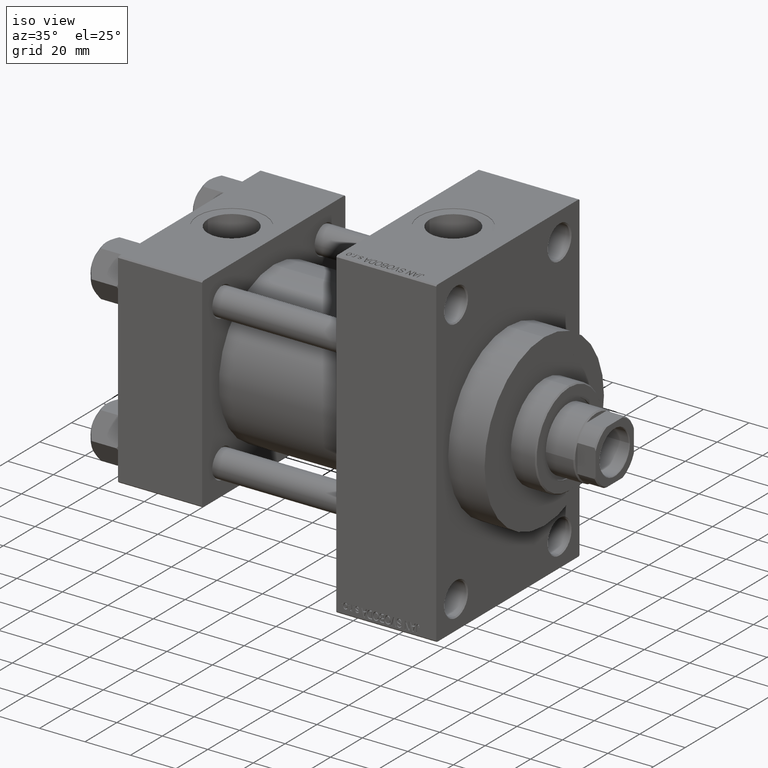
[diagram: clean part render]
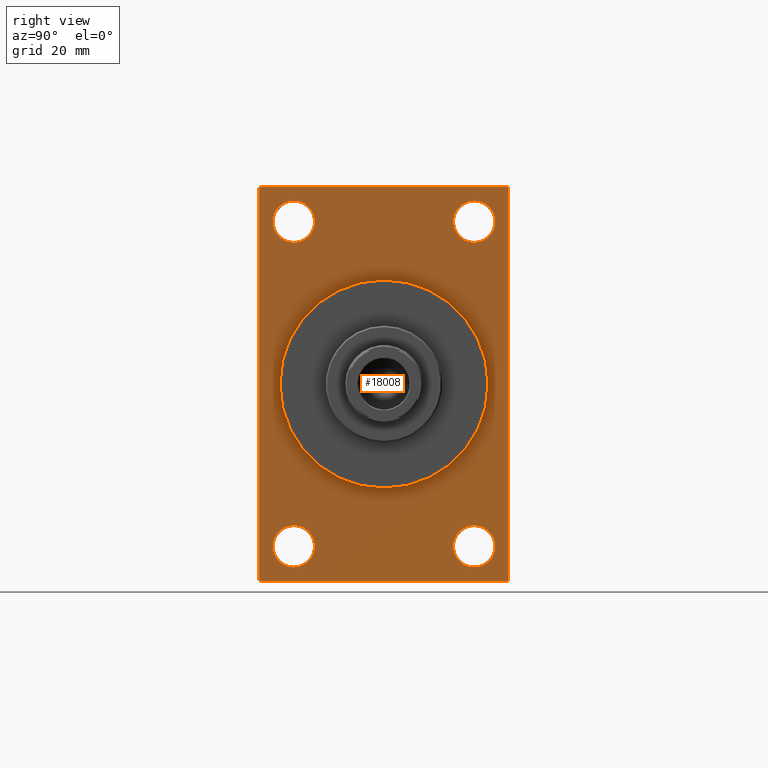
[diagram: tour spotlight — one face highlighted and labeled with its STEP entity id]
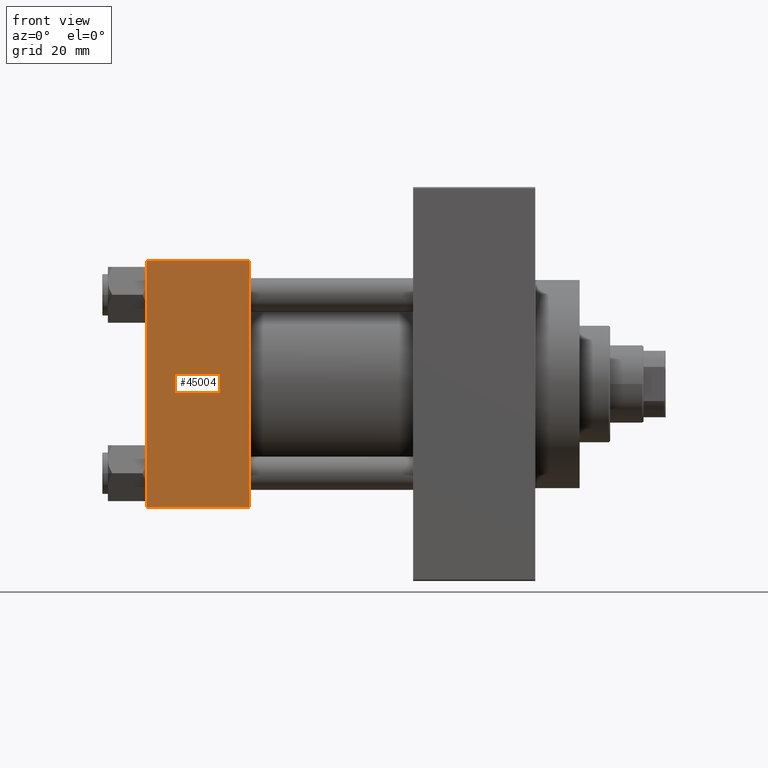
[diagram: tour spotlight — one face highlighted and labeled with its STEP entity id]
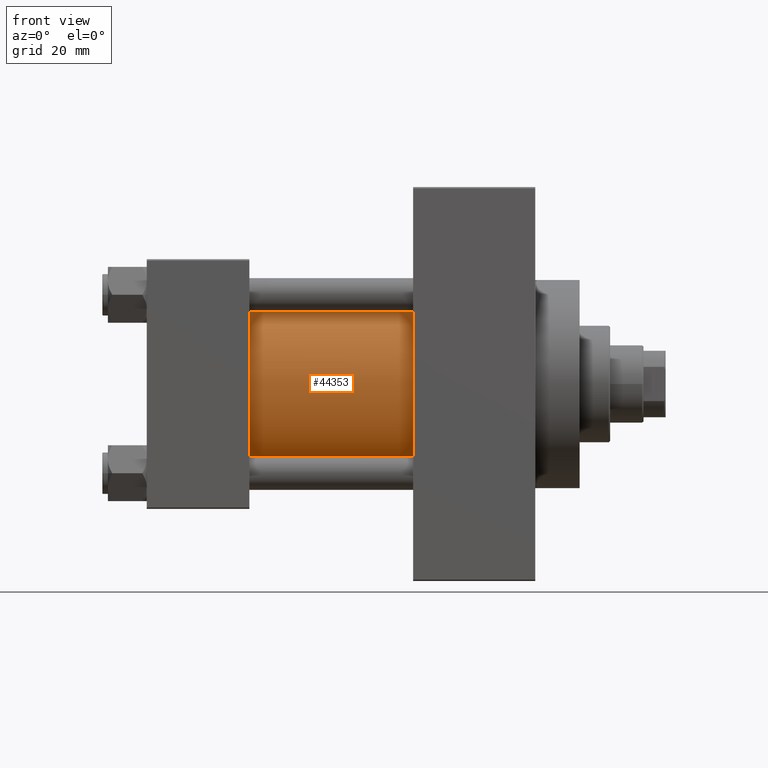
[diagram: tour spotlight — one face highlighted and labeled with its STEP entity id]
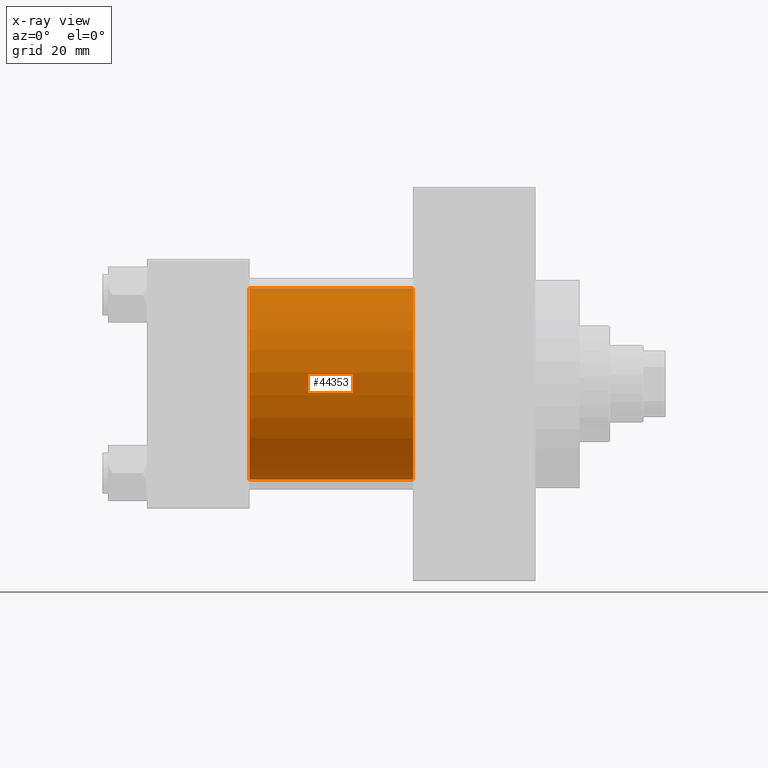
[diagram: x-ray of the same camera — body ghosted, this tour face saturated]
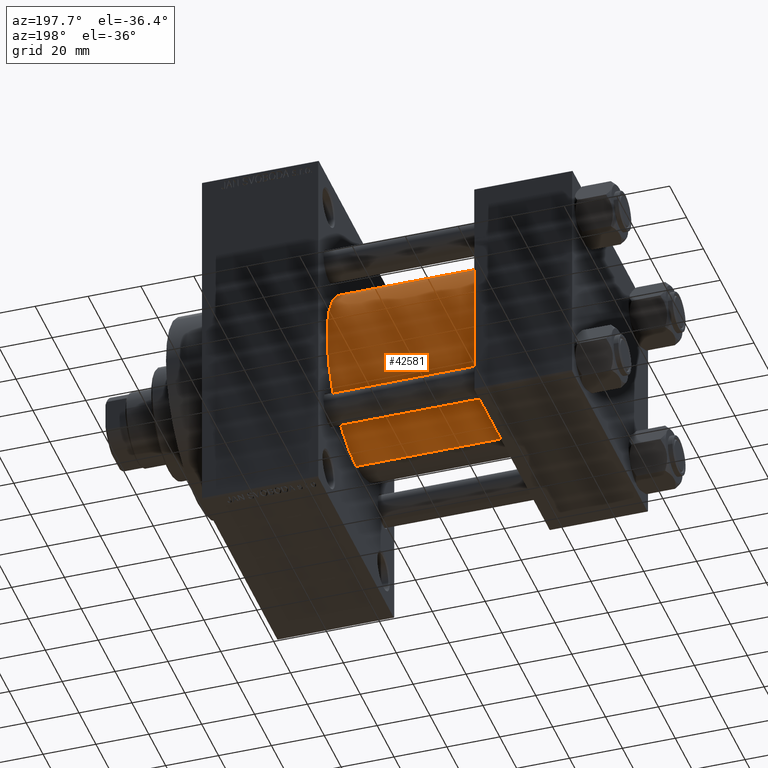
[diagram: tour spotlight — one face highlighted and labeled with its STEP entity id]
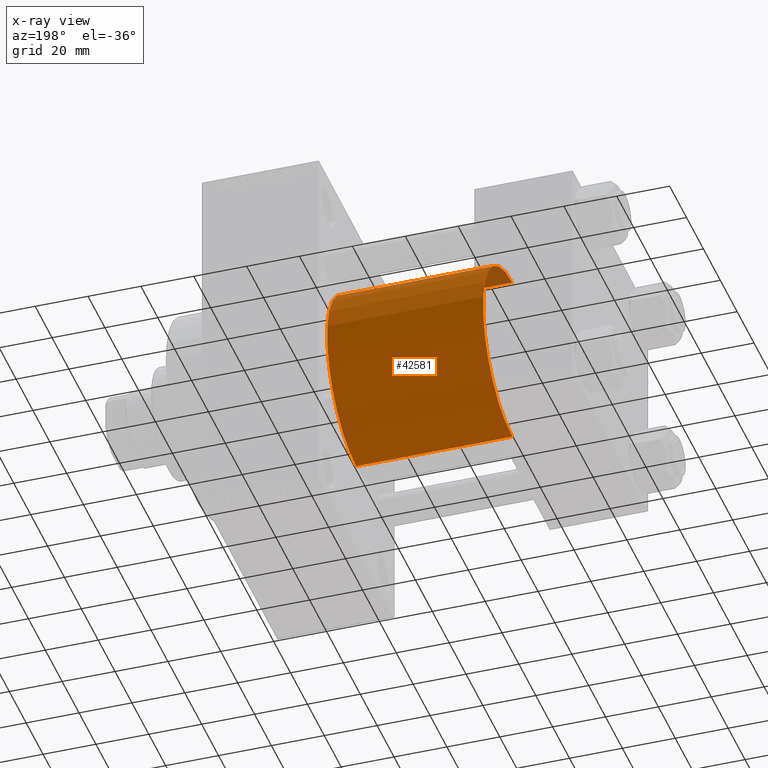
[diagram: x-ray of the same camera — body ghosted, this tour face saturated]
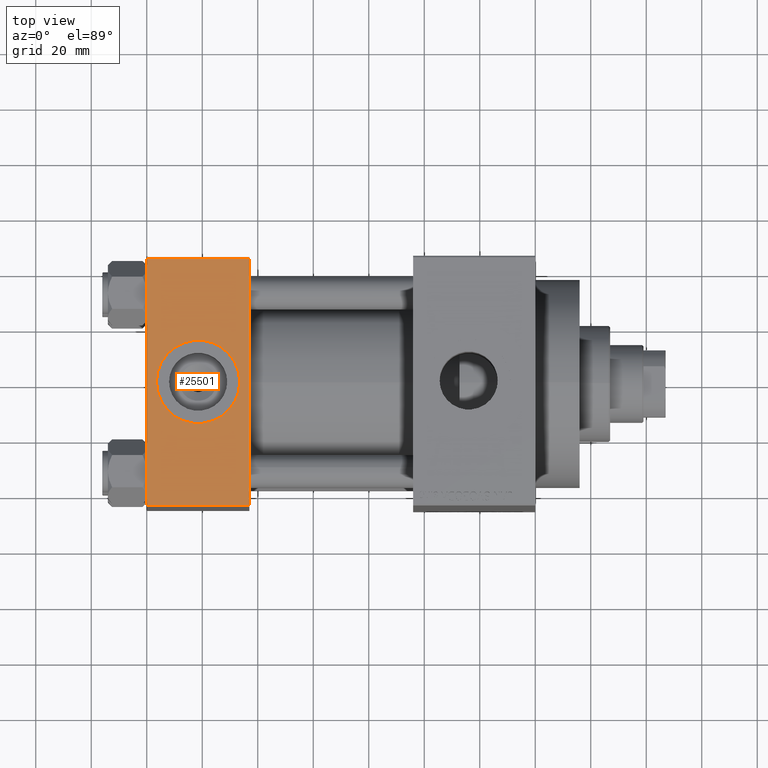
[diagram: tour spotlight — one face highlighted and labeled with its STEP entity id]
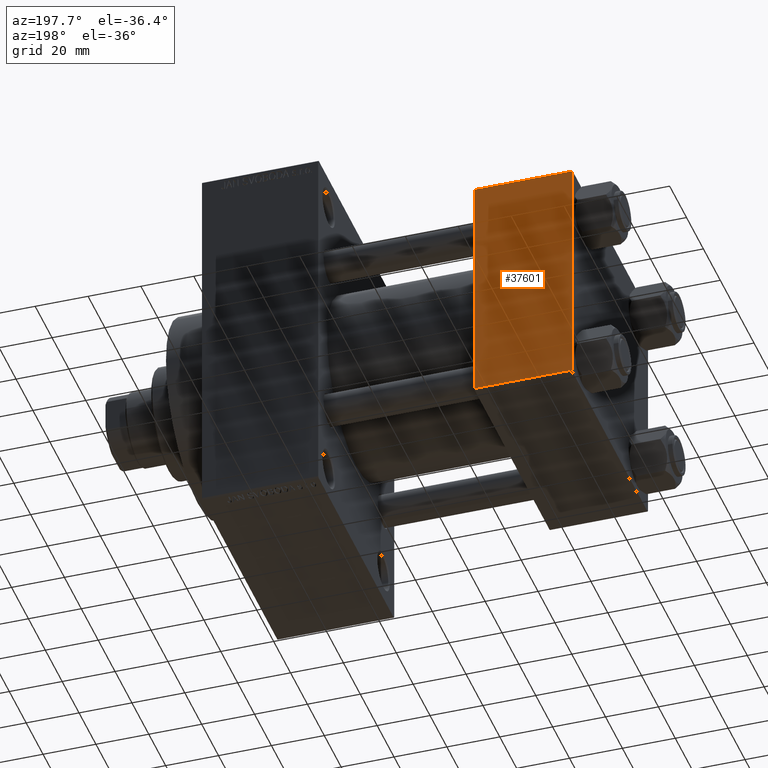
[diagram: tour spotlight — one face highlighted and labeled with its STEP entity id]
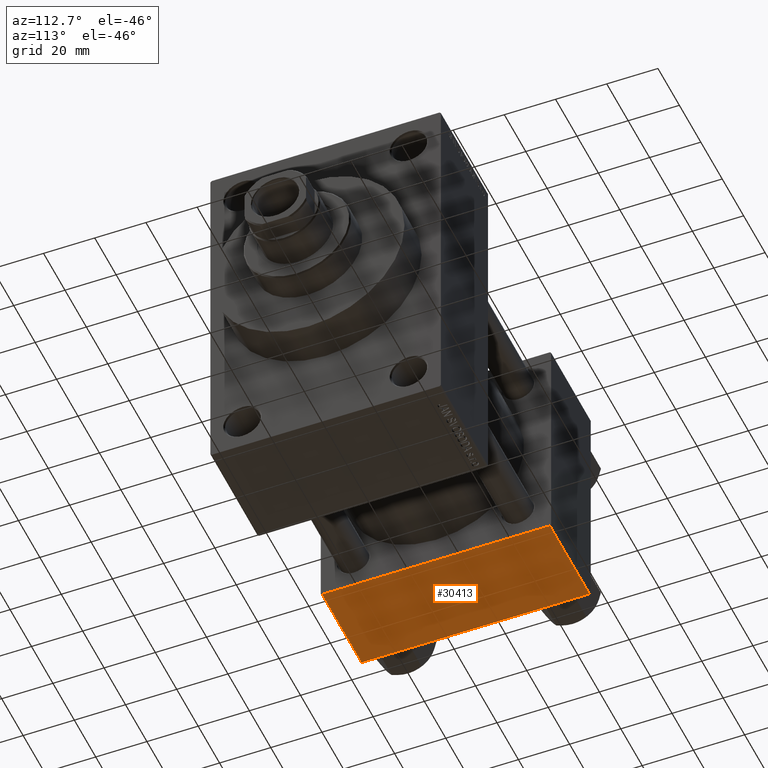
[diagram: tour spotlight — one face highlighted and labeled with its STEP entity id]
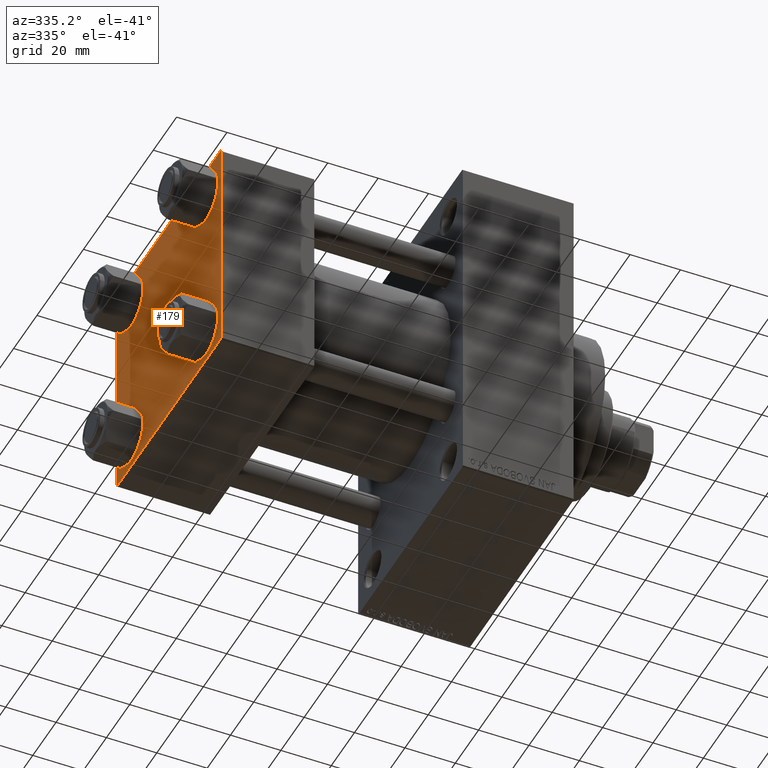
[diagram: tour spotlight — one face highlighted and labeled with its STEP entity id]
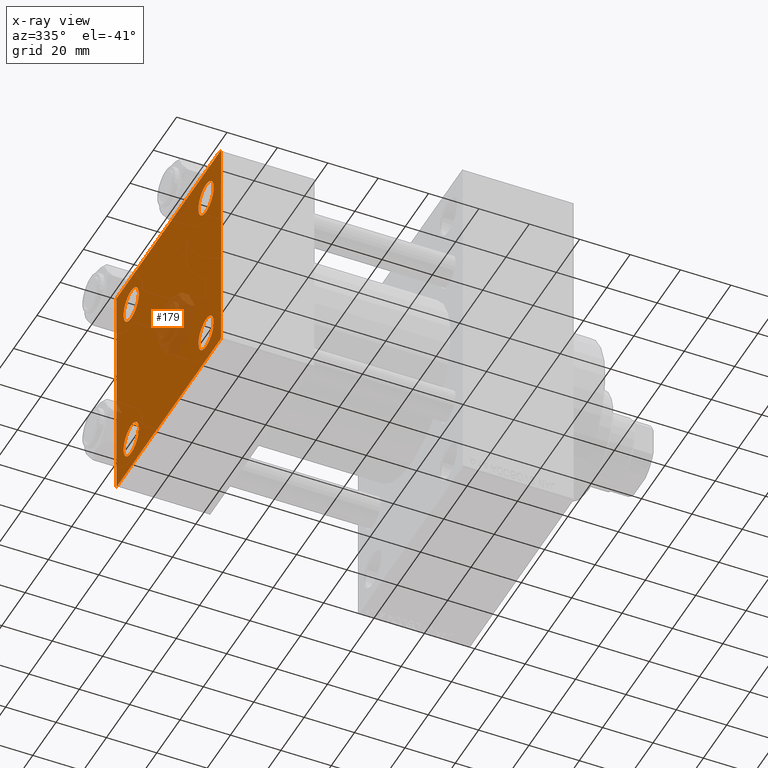
[diagram: x-ray of the same camera — body ghosted, this tour face saturated]
A machine part: a face-by-face anatomy tour. The part has 1103 B-rep faces; the first image is the clean iso view, then the 8 largest visible faces are spotlighted one at a time (largest first), each with its STEP entity span.

Face 1 — right view, entity #18008. In plain terms, the highlighted planar face has unit normal (-1, 0, 0).
Definition (entity closure, byte-faithful):
#372 = EDGE_CURVE ( 'NONE', #26105, #43107, #35386, .T. ) ;
#458 = CARTESIAN_POINT ( 'NONE',  ( 140.0000000000000000, -32.50000000000000000, 58.50000000000000711 ) ) ;
#708 = DIRECTION ( 'NONE',  ( 1.000000000000000000, 0.000000000000000000, 0.000000000000000000 ) ) ;
#814 = VERTEX_POINT ( 'NONE', #11033 ) ;
#1044 = DIRECTION ( 'NONE',  ( 0.000000000000000000, 0.000000000000000000, 1.000000000000000000 ) ) ;
#1315 = CARTESIAN_POINT ( 'NONE',  ( 140.0000000000000000, 32.50000000000000711, 51.00000000000007105 ) ) ;
#1439 = EDGE_LOOP ( 'NONE', ( #38365, #44371 ) ) ;
#1818 = DIRECTION ( 'NONE',  ( -1.000000000000000000, 0.000000000000000000, -0.000000000000000000 ) ) ;
#2123 = AXIS2_PLACEMENT_3D ( 'NONE', #16852, #1818, #10151 ) ;
#2302 = LINE ( 'NONE', #31415, #18129 ) ;
#2949 = DIRECTION ( 'NONE',  ( 0.000000000000000000, 0.000000000000000000, -1.000000000000000000 ) ) ;
#4191 = DIRECTION ( 'NONE',  ( -1.000000000000000000, 0.000000000000000000, -0.000000000000000000 ) ) ;
#4272 = DIRECTION ( 'NONE',  ( -1.000000000000000000, 0.000000000000000000, -0.000000000000000000 ) ) ;
#4457 = VERTEX_POINT ( 'NONE', #9311 ) ;
#4643 = EDGE_CURVE ( 'NONE', #814, #28713, #44545, .T. ) ;
#5332 = EDGE_CURVE ( 'NONE', #43107, #26105, #24030, .T. ) ;
#5617 = DIRECTION ( 'NONE',  ( -0.000000000000000000, 0.000000000000000000, 1.000000000000000000 ) ) ;
#5653 = CARTESIAN_POINT ( 'NONE',  ( 140.0000000000000000, 45.00000000000002132, 71.00000000000000000 ) ) ;
#5668 = VERTEX_POINT ( 'NONE', #35333 ) ;
#5838 = AXIS2_PLACEMENT_3D ( 'NONE', #24944, #10827, #46882 ) ;
#6214 = DIRECTION ( 'NONE',  ( 0.000000000000000000, 0.000000000000000000, 1.000000000000000000 ) ) ;
#6308 = AXIS2_PLACEMENT_3D ( 'NONE', #16016, #43955, #6214 ) ;
#6363 = LINE ( 'NONE', #5653, #37789 ) ;
#6491 = ORIENTED_EDGE ( 'NONE', *, *, #24614, .F. ) ;
#7368 = AXIS2_PLACEMENT_3D ( 'NONE', #19904, #29694, #34454 ) ;
#7588 = LINE ( 'NONE', #18565, #10373 ) ;
#7921 = EDGE_CURVE ( 'NONE', #37407, #40397, #7588, .T. ) ;
#8120 = EDGE_CURVE ( 'NONE', #4457, #44789, #6363, .T. ) ;
#8358 = DIRECTION ( 'NONE',  ( -0.000000000000000000, -0.7071067811865426878, -0.7071067811865524577 ) ) ;
#8573 = EDGE_CURVE ( 'NONE', #37407, #29988, #26757, .T. ) ;
#8641 = AXIS2_PLACEMENT_3D ( 'NONE', #46046, #41984, #45810 ) ;
#9311 = CARTESIAN_POINT ( 'NONE',  ( 140.0000000000000000, 44.50000000000002132, 71.00000000000000000 ) ) ;
#9362 = CARTESIAN_POINT ( 'NONE',  ( 140.0000000000000000, -44.49999999999994316, -71.00000000000000000 ) ) ;
#9475 = VERTEX_POINT ( 'NONE', #42606 ) ;
#9551 = EDGE_CURVE ( 'NONE', #5668, #19611, #42447, .T. ) ;
#9975 = EDGE_CURVE ( 'NONE', #33616, #29988, #19602, .T. ) ;
#10151 = DIRECTION ( 'NONE',  ( 0.000000000000000000, 0.000000000000000000, 1.000000000000000000 ) ) ;
#10305 = CARTESIAN_POINT ( 'NONE',  ( 140.0000000000000000, 32.50000000000000711, 65.99999999999994316 ) ) ;
#10373 = VECTOR ( 'NONE', #32198, 999.9999999999998863 ) ;
#10400 = EDGE_CURVE ( 'NONE', #24690, #44054, #17297, .T. ) ;
#10827 = DIRECTION ( 'NONE',  ( 1.000000000000000000, 0.000000000000000000, 0.000000000000000000 ) ) ;
#11033 = CARTESIAN_POINT ( 'NONE',  ( 140.0000000000000000, -32.50000000000000000, -50.99999999999995737 ) ) ;
#11144 = VECTOR ( 'NONE', #44646, 1000.000000000000000 ) ;
#11623 = EDGE_CURVE ( 'NONE', #44789, #13415, #29609, .T. ) ;
#11653 = CARTESIAN_POINT ( 'NONE',  ( 140.0000000000000000, 4.592425496802575156E-15, -37.50000000000000711 ) ) ;
#11782 = CARTESIAN_POINT ( 'NONE',  ( 140.0000000000000000, 45.00000000000001421, -70.50000000000001421 ) ) ;
#12019 = DIRECTION ( 'NONE',  ( -1.000000000000000000, 0.000000000000000000, -0.000000000000000000 ) ) ;
#13139 = EDGE_CURVE ( 'NONE', #28713, #814, #16133, .T. ) ;
#13163 = ORIENTED_EDGE ( 'NONE', *, *, #5332, .T. ) ;
#13314 = CARTESIAN_POINT ( 'NONE',  ( 140.0000000000000000, -44.99999999999997158, -70.50000000000000000 ) ) ;
#13415 = VERTEX_POINT ( 'NONE', #38144 ) ;
#13483 = ORIENTED_EDGE ( 'NONE', *, *, #34876, .T. ) ;
#13887 = LINE ( 'NONE', #25120, #14038 ) ;
#14038 = VECTOR ( 'NONE', #28684, 1000.000000000000000 ) ;
#14657 = ORIENTED_EDGE ( 'NONE', *, *, #8573, .F. ) ;
#15429 = AXIS2_PLACEMENT_3D ( 'NONE', #458, #4272, #44139 ) ;
#16016 = CARTESIAN_POINT ( 'NONE',  ( 140.0000000000000000, -32.50000000000000000, 58.50000000000000711 ) ) ;
#16133 = CIRCLE ( 'NONE', #23204, 7.500000000000041744 ) ;
#16138 = EDGE_LOOP ( 'NONE', ( #13483, #36878, #14657, #26229, #24417, #24872, #36822, #36104 ) ) ;
#16415 = DIRECTION ( 'NONE',  ( -1.000000000000000000, 0.000000000000000000, -0.000000000000000000 ) ) ;
#16607 = FACE_BOUND ( 'NONE', #38657, .T. ) ;
#16845 = PLANE ( 'NONE',  #29144 ) ;
#16852 = CARTESIAN_POINT ( 'NONE',  ( 140.0000000000000000, 32.50000000000000711, -58.50000000000000000 ) ) ;
#17297 = CIRCLE ( 'NONE', #7368, 7.500000000000034639 ) ;
#17340 = EDGE_LOOP ( 'NONE', ( #27101, #13163 ) ) ;
#17525 = VECTOR ( 'NONE', #20586, 1000.000000000000114 ) ;
#17949 = VERTEX_POINT ( 'NONE', #19010 ) ;
#18008 = ADVANCED_FACE ( 'NONE', ( #20681, #16607, #31883, #23783, #24024, #31644 ), #16845, .F. ) ;
#18129 = VECTOR ( 'NONE', #23793, 1000.000000000000000 ) ;
#18565 = CARTESIAN_POINT ( 'NONE',  ( 140.0000000000000000, 45.00000000000001421, -70.50000000000001421 ) ) ;
#19010 = CARTESIAN_POINT ( 'NONE',  ( 140.0000000000000000, -32.50000000000000000, 65.99999999999994316 ) ) ;
#19415 = EDGE_CURVE ( 'NONE', #9475, #17949, #26899, .T. ) ;
#19581 = EDGE_CURVE ( 'NONE', #17949, #9475, #44399, .T. ) ;
#19602 = LINE ( 'NONE', #34620, #27971 ) ;
#19611 = VERTEX_POINT ( 'NONE', #11653 ) ;
#19904 = CARTESIAN_POINT ( 'NONE',  ( 140.0000000000000000, 32.50000000000000711, -58.50000000000000000 ) ) ;
#20586 = DIRECTION ( 'NONE',  ( 0.000000000000000000, -0.7071067811865474617, 0.7071067811865474617 ) ) ;
#20681 = FACE_BOUND ( 'NONE', #1439, .T. ) ;
#21727 = CIRCLE ( 'NONE', #31635, 37.50000000000000711 ) ;
#21907 = VECTOR ( 'NONE', #8358, 1000.000000000000000 ) ;
#22372 = EDGE_LOOP ( 'NONE', ( #24178, #6491 ) ) ;
#23165 = CARTESIAN_POINT ( 'NONE',  ( 140.0000000000000000, -44.99999999999997158, 70.49999999999998579 ) ) ;
#23204 = AXIS2_PLACEMENT_3D ( 'NONE', #40697, #4191, #36648 ) ;
#23538 = ORIENTED_EDGE ( 'NONE', *, *, #10400, .T. ) ;
#23783 = FACE_BOUND ( 'NONE', #17340, .T. ) ;
#23793 = DIRECTION ( 'NONE',  ( 0.000000000000000000, 0.000000000000000000, -1.000000000000000000 ) ) ;
#23909 = EDGE_CURVE ( 'NONE', #42490, #40397, #13887, .T. ) ;
#23990 = AXIS2_PLACEMENT_3D ( 'NONE', #41957, #16415, #38120 ) ;
#24024 = FACE_BOUND ( 'NONE', #22372, .T. ) ;
#24030 = CIRCLE ( 'NONE', #27837, 7.499999999999936939 ) ;
#24178 = ORIENTED_EDGE ( 'NONE', *, *, #9551, .F. ) ;
#24417 = ORIENTED_EDGE ( 'NONE', *, *, #23909, .F. ) ;
#24614 = EDGE_CURVE ( 'NONE', #19611, #5668, #21727, .T. ) ;
#24690 = VERTEX_POINT ( 'NONE', #34828 ) ;
#24872 = ORIENTED_EDGE ( 'NONE', *, *, #46848, .T. ) ;
#24944 = CARTESIAN_POINT ( 'NONE',  ( 140.0000000000000000, 0.000000000000000000, 0.000000000000000000 ) ) ;
#25120 = CARTESIAN_POINT ( 'NONE',  ( 140.0000000000000000, 45.00000000000002132, 71.00000000000000000 ) ) ;
#26105 = VERTEX_POINT ( 'NONE', #1315 ) ;
#26229 = ORIENTED_EDGE ( 'NONE', *, *, #7921, .T. ) ;
#26757 = LINE ( 'NONE', #30560, #11144 ) ;
#26899 = CIRCLE ( 'NONE', #6308, 7.499999999999936939 ) ;
#27101 = ORIENTED_EDGE ( 'NONE', *, *, #372, .T. ) ;
#27303 = CARTESIAN_POINT ( 'NONE',  ( 140.0000000000000000, 32.50000000000000711, 58.50000000000000711 ) ) ;
#27837 = AXIS2_PLACEMENT_3D ( 'NONE', #27303, #12019, #1044 ) ;
#27971 = VECTOR ( 'NONE', #34387, 1000.000000000000000 ) ;
#28684 = DIRECTION ( 'NONE',  ( 0.000000000000000000, -4.886545002751570165E-17, -1.000000000000000000 ) ) ;
#28713 = VERTEX_POINT ( 'NONE', #42966 ) ;
#28947 = ORIENTED_EDGE ( 'NONE', *, *, #4643, .T. ) ;
#29144 = AXIS2_PLACEMENT_3D ( 'NONE', #38302, #31409, #5617 ) ;
#29609 = LINE ( 'NONE', #23165, #21907 ) ;
#29694 = DIRECTION ( 'NONE',  ( -1.000000000000000000, 0.000000000000000000, -0.000000000000000000 ) ) ;
#29988 = VERTEX_POINT ( 'NONE', #9362 ) ;
#30045 = CARTESIAN_POINT ( 'NONE',  ( 140.0000000000000000, 32.50000000000000711, -50.99999999999996447 ) ) ;
#30227 = ORIENTED_EDGE ( 'NONE', *, *, #13139, .T. ) ;
#30330 = CIRCLE ( 'NONE', #2123, 7.500000000000034639 ) ;
#30560 = CARTESIAN_POINT ( 'NONE',  ( 140.0000000000000000, 45.00000000000001421, -70.99999999999998579 ) ) ;
#31409 = DIRECTION ( 'NONE',  ( -1.000000000000000000, 0.000000000000000000, -0.000000000000000000 ) ) ;
#31415 = CARTESIAN_POINT ( 'NONE',  ( 140.0000000000000000, -44.99999999999997158, 70.99999999999998579 ) ) ;
#31548 = CARTESIAN_POINT ( 'NONE',  ( 140.0000000000000000, 44.50000000000002132, 71.00000000000000000 ) ) ;
#31635 = AXIS2_PLACEMENT_3D ( 'NONE', #44157, #708, #2949 ) ;
#31644 = FACE_OUTER_BOUND ( 'NONE', #16138, .T. ) ;
#31883 = FACE_BOUND ( 'NONE', #38664, .T. ) ;
#32198 = DIRECTION ( 'NONE',  ( -0.000000000000000000, 0.7071067811865574537, 0.7071067811865376918 ) ) ;
#33078 = CARTESIAN_POINT ( 'NONE',  ( 140.0000000000000000, 45.00000000000002132, 70.50000000000000000 ) ) ;
#33616 = VERTEX_POINT ( 'NONE', #13314 ) ;
#34387 = DIRECTION ( 'NONE',  ( 0.000000000000000000, 0.7071067811865573427, -0.7071067811865378028 ) ) ;
#34454 = DIRECTION ( 'NONE',  ( 0.000000000000000000, 0.000000000000000000, 1.000000000000000000 ) ) ;
#34620 = CARTESIAN_POINT ( 'NONE',  ( 140.0000000000000000, -44.49999999999997158, -71.00000000000000000 ) ) ;
#34828 = CARTESIAN_POINT ( 'NONE',  ( 140.0000000000000000, 32.50000000000000711, -66.00000000000002842 ) ) ;
#34874 = EDGE_CURVE ( 'NONE', #44054, #24690, #30330, .T. ) ;
#34876 = EDGE_CURVE ( 'NONE', #13415, #33616, #2302, .T. ) ;
#35333 = CARTESIAN_POINT ( 'NONE',  ( 140.0000000000000000, 0.000000000000000000, 37.50000000000000711 ) ) ;
#35386 = CIRCLE ( 'NONE', #8641, 7.499999999999936939 ) ;
#36104 = ORIENTED_EDGE ( 'NONE', *, *, #11623, .T. ) ;
#36648 = DIRECTION ( 'NONE',  ( 0.000000000000000000, 0.000000000000000000, 1.000000000000000000 ) ) ;
#36822 = ORIENTED_EDGE ( 'NONE', *, *, #8120, .T. ) ;
#36878 = ORIENTED_EDGE ( 'NONE', *, *, #9975, .T. ) ;
#36907 = CARTESIAN_POINT ( 'NONE',  ( 140.0000000000000000, 44.50000000000004263, -70.99999999999998579 ) ) ;
#37407 = VERTEX_POINT ( 'NONE', #36907 ) ;
#37789 = VECTOR ( 'NONE', #42658, 1000.000000000000000 ) ;
#38120 = DIRECTION ( 'NONE',  ( 0.000000000000000000, 0.000000000000000000, 1.000000000000000000 ) ) ;
#38144 = CARTESIAN_POINT ( 'NONE',  ( 140.0000000000000000, -44.99999999999997158, 70.49999999999998579 ) ) ;
#38302 = CARTESIAN_POINT ( 'NONE',  ( 140.0000000000000000, 0.000000000000000000, 0.000000000000000000 ) ) ;
#38365 = ORIENTED_EDGE ( 'NONE', *, *, #19415, .T. ) ;
#38657 = EDGE_LOOP ( 'NONE', ( #30227, #28947 ) ) ;
#38664 = EDGE_LOOP ( 'NONE', ( #23538, #44469 ) ) ;
#40397 = VERTEX_POINT ( 'NONE', #11782 ) ;
#40697 = CARTESIAN_POINT ( 'NONE',  ( 140.0000000000000000, -32.50000000000000000, -58.49999999999999289 ) ) ;
#41957 = CARTESIAN_POINT ( 'NONE',  ( 140.0000000000000000, -32.50000000000000000, -58.49999999999999289 ) ) ;
#41984 = DIRECTION ( 'NONE',  ( -1.000000000000000000, 0.000000000000000000, -0.000000000000000000 ) ) ;
#42279 = LINE ( 'NONE', #31548, #17525 ) ;
#42447 = CIRCLE ( 'NONE', #5838, 37.50000000000000711 ) ;
#42490 = VERTEX_POINT ( 'NONE', #33078 ) ;
#42606 = CARTESIAN_POINT ( 'NONE',  ( 140.0000000000000000, -32.50000000000000000, 51.00000000000007105 ) ) ;
#42658 = DIRECTION ( 'NONE',  ( 0.000000000000000000, -1.000000000000000000, -1.541976423090495387E-16 ) ) ;
#42966 = CARTESIAN_POINT ( 'NONE',  ( 140.0000000000000000, -32.50000000000000000, -66.00000000000001421 ) ) ;
#43107 = VERTEX_POINT ( 'NONE', #10305 ) ;
#43210 = CARTESIAN_POINT ( 'NONE',  ( 140.0000000000000000, -44.49999999999995026, 70.99999999999998579 ) ) ;
#43955 = DIRECTION ( 'NONE',  ( -1.000000000000000000, 0.000000000000000000, -0.000000000000000000 ) ) ;
#44054 = VERTEX_POINT ( 'NONE', #30045 ) ;
#44139 = DIRECTION ( 'NONE',  ( 0.000000000000000000, 0.000000000000000000, 1.000000000000000000 ) ) ;
#44157 = CARTESIAN_POINT ( 'NONE',  ( 140.0000000000000000, 0.000000000000000000, 0.000000000000000000 ) ) ;
#44371 = ORIENTED_EDGE ( 'NONE', *, *, #19581, .T. ) ;
#44399 = CIRCLE ( 'NONE', #15429, 7.499999999999936939 ) ;
#44469 = ORIENTED_EDGE ( 'NONE', *, *, #34874, .T. ) ;
#44545 = CIRCLE ( 'NONE', #23990, 7.500000000000041744 ) ;
#44646 = DIRECTION ( 'NONE',  ( 0.000000000000000000, -1.000000000000000000, -1.541976423090495633E-16 ) ) ;
#44789 = VERTEX_POINT ( 'NONE', #43210 ) ;
#45810 = DIRECTION ( 'NONE',  ( 0.000000000000000000, 0.000000000000000000, 1.000000000000000000 ) ) ;
#46046 = CARTESIAN_POINT ( 'NONE',  ( 140.0000000000000000, 32.50000000000000711, 58.50000000000000711 ) ) ;
#46848 = EDGE_CURVE ( 'NONE', #42490, #4457, #42279, .T. ) ;
#46882 = DIRECTION ( 'NONE',  ( 0.000000000000000000, 0.000000000000000000, -1.000000000000000000 ) ) ;

Face 2 — front view, entity #45004. In plain terms, the highlighted planar face has unit normal (0, 1, 0).
Definition (entity closure, byte-faithful):
#173 = VECTOR ( 'NONE', #41013, 1000.000000000000000 ) ;
#2205 = CARTESIAN_POINT ( 'NONE',  ( 0.000000000000000000, -45.00000000000000711, 44.49999999999997158 ) ) ;
#4756 = PLANE ( 'NONE',  #12875 ) ;
#7439 = DIRECTION ( 'NONE',  ( 1.000000000000000000, 0.000000000000000000, 0.000000000000000000 ) ) ;
#8339 = FACE_OUTER_BOUND ( 'NONE', #28345, .T. ) ;
#9408 = VECTOR ( 'NONE', #38870, 1000.000000000000000 ) ;
#10349 = CARTESIAN_POINT ( 'NONE',  ( 0.000000000000000000, -45.00000000000000711, 45.00000000000000000 ) ) ;
#10583 = DIRECTION ( 'NONE',  ( 0.000000000000000000, 7.709882115452476934E-17, -1.000000000000000000 ) ) ;
#12875 = AXIS2_PLACEMENT_3D ( 'NONE', #16195, #41031, #34577 ) ;
#13097 = CARTESIAN_POINT ( 'NONE',  ( 37.00000000000000000, -45.00000000000000711, 44.49999999999997158 ) ) ;
#13800 = ORIENTED_EDGE ( 'NONE', *, *, #15895, .T. ) ;
#15895 = EDGE_CURVE ( 'NONE', #26419, #32730, #43757, .T. ) ;
#16195 = CARTESIAN_POINT ( 'NONE',  ( 37.00000000000000000, -45.00000000000000711, 45.00000000000000000 ) ) ;
#18713 = EDGE_CURVE ( 'NONE', #19077, #44982, #43897, .T. ) ;
#19077 = VERTEX_POINT ( 'NONE', #22592 ) ;
#19922 = VECTOR ( 'NONE', #10583, 1000.000000000000000 ) ;
#21490 = EDGE_CURVE ( 'NONE', #19077, #26419, #24344, .T. ) ;
#22592 = CARTESIAN_POINT ( 'NONE',  ( 37.00000000000000000, -45.00000000000000711, 44.49999999999997158 ) ) ;
#22651 = CARTESIAN_POINT ( 'NONE',  ( 37.00000000000000000, -45.00000000000000711, 45.00000000000000000 ) ) ;
#23627 = VECTOR ( 'NONE', #7439, 1000.000000000000000 ) ;
#24317 = ORIENTED_EDGE ( 'NONE', *, *, #21490, .T. ) ;
#24344 = LINE ( 'NONE', #13097, #9408 ) ;
#26419 = VERTEX_POINT ( 'NONE', #2205 ) ;
#27057 = ORIENTED_EDGE ( 'NONE', *, *, #39755, .T. ) ;
#27429 = CARTESIAN_POINT ( 'NONE',  ( 37.00000000000000000, -45.00000000000000000, -44.49999999999995737 ) ) ;
#28345 = EDGE_LOOP ( 'NONE', ( #13800, #27057, #44394, #24317 ) ) ;
#32517 = LINE ( 'NONE', #36775, #23627 ) ;
#32730 = VERTEX_POINT ( 'NONE', #47125 ) ;
#34577 = DIRECTION ( 'NONE',  ( 0.000000000000000000, -7.709882115452478166E-17, 1.000000000000000000 ) ) ;
#36775 = CARTESIAN_POINT ( 'NONE',  ( 37.00000000000000000, -45.00000000000000000, -44.49999999999998579 ) ) ;
#38870 = DIRECTION ( 'NONE',  ( -1.000000000000000000, 0.000000000000000000, 0.000000000000000000 ) ) ;
#39755 = EDGE_CURVE ( 'NONE', #32730, #44982, #32517, .T. ) ;
#41013 = DIRECTION ( 'NONE',  ( 0.000000000000000000, 7.709882115452476934E-17, -1.000000000000000000 ) ) ;
#41031 = DIRECTION ( 'NONE',  ( -0.000000000000000000, 1.000000000000000000, 7.709882115452478166E-17 ) ) ;
#43757 = LINE ( 'NONE', #10349, #19922 ) ;
#43897 = LINE ( 'NONE', #22651, #173 ) ;
#44394 = ORIENTED_EDGE ( 'NONE', *, *, #18713, .F. ) ;
#44982 = VERTEX_POINT ( 'NONE', #27429 ) ;
#45004 = ADVANCED_FACE ( 'NONE', ( #8339 ), #4756, .F. ) ;
#47125 = CARTESIAN_POINT ( 'NONE',  ( 0.000000000000000000, -45.00000000000000000, -44.49999999999995737 ) ) ;

Face 3 — front view, entity #44353. An x-ray twin of the same camera follows (body ghosted, this face saturated) — the face is partly hidden behind the body. In plain terms, the highlighted cylindrical surface (partial cylindrical patch) has radius 34.5 mm, axis along (-1, -0, -0).
Definition (entity closure, byte-faithful):
#886 = ORIENTED_EDGE ( 'NONE', *, *, #11099, .F. ) ;
#3789 = EDGE_CURVE ( 'NONE', #7621, #5201, #10238, .T. ) ;
#3920 = CARTESIAN_POINT ( 'NONE',  ( 96.00000000000000000, -2.602085213965210642E-15, 34.50000000000000000 ) ) ;
#5201 = VERTEX_POINT ( 'NONE', #46431 ) ;
#5631 = EDGE_LOOP ( 'NONE', ( #886, #32115, #22181, #10576 ) ) ;
#7022 = VECTOR ( 'NONE', #18481, 1000.000000000000000 ) ;
#7048 = DIRECTION ( 'NONE',  ( -1.000000000000000000, -0.000000000000000000, -0.000000000000000000 ) ) ;
#7621 = VERTEX_POINT ( 'NONE', #9463 ) ;
#8188 = VECTOR ( 'NONE', #7048, 1000.000000000000000 ) ;
#9253 = DIRECTION ( 'NONE',  ( 0.000000000000000000, 0.000000000000000000, -1.000000000000000000 ) ) ;
#9463 = CARTESIAN_POINT ( 'NONE',  ( 96.00000000000000000, -2.602085213965210642E-15, 34.50000000000000000 ) ) ;
#9487 = CARTESIAN_POINT ( 'NONE',  ( 96.00000000000000000, -2.602085213965210642E-15, 0.000000000000000000 ) ) ;
#10238 = CIRCLE ( 'NONE', #16336, 34.50000000000000000 ) ;
#10576 = ORIENTED_EDGE ( 'NONE', *, *, #28673, .T. ) ;
#11099 = EDGE_CURVE ( 'NONE', #5201, #31942, #36628, .T. ) ;
#11356 = CARTESIAN_POINT ( 'NONE',  ( 37.00000000000000000, 1.622946243093158675E-15, -34.50000000000000000 ) ) ;
#12258 = FACE_OUTER_BOUND ( 'NONE', #5631, .T. ) ;
#14881 = CIRCLE ( 'NONE', #27849, 34.50000000000000000 ) ;
#14914 = CARTESIAN_POINT ( 'NONE',  ( 96.00000000000000000, 1.622946243093158675E-15, -34.50000000000000000 ) ) ;
#16336 = AXIS2_PLACEMENT_3D ( 'NONE', #9487, #31219, #9253 ) ;
#16789 = CARTESIAN_POINT ( 'NONE',  ( 96.00000000000000000, -2.602085213965210642E-15, 0.000000000000000000 ) ) ;
#17075 = CARTESIAN_POINT ( 'NONE',  ( 37.00000000000000000, -2.602085213965210642E-15, 34.50000000000000000 ) ) ;
#17433 = CARTESIAN_POINT ( 'NONE',  ( 37.00000000000000000, -2.602085213965210642E-15, 0.000000000000000000 ) ) ;
#18118 = EDGE_CURVE ( 'NONE', #7621, #31979, #36610, .T. ) ;
#18481 = DIRECTION ( 'NONE',  ( -1.000000000000000000, -0.000000000000000000, -0.000000000000000000 ) ) ;
#20626 = DIRECTION ( 'NONE',  ( -1.000000000000000000, -0.000000000000000000, -0.000000000000000000 ) ) ;
#22181 = ORIENTED_EDGE ( 'NONE', *, *, #18118, .T. ) ;
#23729 = DIRECTION ( 'NONE',  ( 0.000000000000000000, 0.000000000000000000, 1.000000000000000000 ) ) ;
#27849 = AXIS2_PLACEMENT_3D ( 'NONE', #17433, #32000, #39135 ) ;
#28673 = EDGE_CURVE ( 'NONE', #31979, #31942, #14881, .T. ) ;
#31219 = DIRECTION ( 'NONE',  ( 1.000000000000000000, 0.000000000000000000, 0.000000000000000000 ) ) ;
#31942 = VERTEX_POINT ( 'NONE', #11356 ) ;
#31979 = VERTEX_POINT ( 'NONE', #17075 ) ;
#32000 = DIRECTION ( 'NONE',  ( 1.000000000000000000, -0.000000000000000000, 0.000000000000000000 ) ) ;
#32115 = ORIENTED_EDGE ( 'NONE', *, *, #3789, .F. ) ;
#34689 = CYLINDRICAL_SURFACE ( 'NONE', #45632, 34.50000000000000000 ) ;
#36610 = LINE ( 'NONE', #3920, #7022 ) ;
#36628 = LINE ( 'NONE', #14914, #8188 ) ;
#39135 = DIRECTION ( 'NONE',  ( 0.000000000000000000, 0.000000000000000000, 1.000000000000000000 ) ) ;
#44353 = ADVANCED_FACE ( 'NONE', ( #12258 ), #34689, .T. ) ;
#45632 = AXIS2_PLACEMENT_3D ( 'NONE', #16789, #20626, #23729 ) ;
#46431 = CARTESIAN_POINT ( 'NONE',  ( 96.00000000000000000, 1.622946243093158675E-15, -34.50000000000000000 ) ) ;

Face 4 — auxiliary view, entity #42581. An x-ray twin of the same camera follows (body ghosted, this face saturated) — the face is partly hidden behind the body. In plain terms, the highlighted cylindrical surface (partial cylindrical patch) has radius 34.5 mm, axis along (-1, -0, -0).
Definition (entity closure, byte-faithful):
#188 = CARTESIAN_POINT ( 'NONE',  ( 37.00000000000000000, -2.602085213965210642E-15, 0.000000000000000000 ) ) ;
#1471 = EDGE_CURVE ( 'NONE', #31942, #31979, #39128, .T. ) ;
#3920 = CARTESIAN_POINT ( 'NONE',  ( 96.00000000000000000, -2.602085213965210642E-15, 34.50000000000000000 ) ) ;
#5201 = VERTEX_POINT ( 'NONE', #46431 ) ;
#7022 = VECTOR ( 'NONE', #18481, 1000.000000000000000 ) ;
#7048 = DIRECTION ( 'NONE',  ( -1.000000000000000000, -0.000000000000000000, -0.000000000000000000 ) ) ;
#7621 = VERTEX_POINT ( 'NONE', #9463 ) ;
#8188 = VECTOR ( 'NONE', #7048, 1000.000000000000000 ) ;
#9196 = DIRECTION ( 'NONE',  ( 1.000000000000000000, 0.000000000000000000, 0.000000000000000000 ) ) ;
#9463 = CARTESIAN_POINT ( 'NONE',  ( 96.00000000000000000, -2.602085213965210642E-15, 34.50000000000000000 ) ) ;
#11099 = EDGE_CURVE ( 'NONE', #5201, #31942, #36628, .T. ) ;
#11356 = CARTESIAN_POINT ( 'NONE',  ( 37.00000000000000000, 1.622946243093158675E-15, -34.50000000000000000 ) ) ;
#14735 = DIRECTION ( 'NONE',  ( 1.000000000000000000, -0.000000000000000000, 0.000000000000000000 ) ) ;
#14914 = CARTESIAN_POINT ( 'NONE',  ( 96.00000000000000000, 1.622946243093158675E-15, -34.50000000000000000 ) ) ;
#15170 = DIRECTION ( 'NONE',  ( -1.000000000000000000, -0.000000000000000000, -0.000000000000000000 ) ) ;
#17075 = CARTESIAN_POINT ( 'NONE',  ( 37.00000000000000000, -2.602085213965210642E-15, 34.50000000000000000 ) ) ;
#18118 = EDGE_CURVE ( 'NONE', #7621, #31979, #36610, .T. ) ;
#18481 = DIRECTION ( 'NONE',  ( -1.000000000000000000, -0.000000000000000000, -0.000000000000000000 ) ) ;
#20192 = DIRECTION ( 'NONE',  ( 0.000000000000000000, 0.000000000000000000, -1.000000000000000000 ) ) ;
#21532 = ORIENTED_EDGE ( 'NONE', *, *, #38699, .F. ) ;
#21667 = ORIENTED_EDGE ( 'NONE', *, *, #11099, .T. ) ;
#23298 = CYLINDRICAL_SURFACE ( 'NONE', #44812, 34.50000000000000000 ) ;
#27348 = CARTESIAN_POINT ( 'NONE',  ( 96.00000000000000000, -2.602085213965210642E-15, 0.000000000000000000 ) ) ;
#28895 = AXIS2_PLACEMENT_3D ( 'NONE', #27348, #9196, #20192 ) ;
#29507 = FACE_OUTER_BOUND ( 'NONE', #47045, .T. ) ;
#29972 = DIRECTION ( 'NONE',  ( 0.000000000000000000, 0.000000000000000000, 1.000000000000000000 ) ) ;
#31942 = VERTEX_POINT ( 'NONE', #11356 ) ;
#31979 = VERTEX_POINT ( 'NONE', #17075 ) ;
#34805 = ORIENTED_EDGE ( 'NONE', *, *, #1471, .T. ) ;
#36610 = LINE ( 'NONE', #3920, #7022 ) ;
#36628 = LINE ( 'NONE', #14914, #8188 ) ;
#37292 = CIRCLE ( 'NONE', #28895, 34.50000000000000000 ) ;
#38699 = EDGE_CURVE ( 'NONE', #5201, #7621, #37292, .T. ) ;
#39094 = AXIS2_PLACEMENT_3D ( 'NONE', #188, #14735, #43870 ) ;
#39128 = CIRCLE ( 'NONE', #39094, 34.50000000000000000 ) ;
#41208 = ORIENTED_EDGE ( 'NONE', *, *, #18118, .F. ) ;
#42581 = ADVANCED_FACE ( 'NONE', ( #29507 ), #23298, .T. ) ;
#43870 = DIRECTION ( 'NONE',  ( 0.000000000000000000, 0.000000000000000000, 1.000000000000000000 ) ) ;
#44812 = AXIS2_PLACEMENT_3D ( 'NONE', #45010, #15170, #29972 ) ;
#45010 = CARTESIAN_POINT ( 'NONE',  ( 96.00000000000000000, -2.602085213965210642E-15, 0.000000000000000000 ) ) ;
#46431 = CARTESIAN_POINT ( 'NONE',  ( 96.00000000000000000, 1.622946243093158675E-15, -34.50000000000000000 ) ) ;
#47045 = EDGE_LOOP ( 'NONE', ( #21532, #21667, #34805, #41208 ) ) ;

Face 5 — top view, entity #25501. In plain terms, the highlighted planar face has unit normal (0, 0, -1).
Definition (entity closure, byte-faithful):
#84 = DIRECTION ( 'NONE',  ( 0.000000000000000000, 0.000000000000000000, 1.000000000000000000 ) ) ;
#1368 = DIRECTION ( 'NONE',  ( 1.000000000000000000, 0.000000000000000000, 0.000000000000000000 ) ) ;
#1490 = DIRECTION ( 'NONE',  ( 0.000000000000000000, 1.000000000000000000, 1.541976423090495633E-16 ) ) ;
#1914 = CARTESIAN_POINT ( 'NONE',  ( 18.50000000000000000, -8.673617379884038628E-15, 45.00000000000000711 ) ) ;
#2114 = EDGE_CURVE ( 'NONE', #26175, #20880, #24362, .T. ) ;
#2609 = EDGE_CURVE ( 'NONE', #17652, #26175, #35541, .T. ) ;
#3402 = EDGE_CURVE ( 'NONE', #43582, #44562, #15553, .T. ) ;
#3749 = VECTOR ( 'NONE', #1368, 1000.000000000000000 ) ;
#6191 = CARTESIAN_POINT ( 'NONE',  ( 0.000000000000000000, 44.99999999999998579, 45.00000000000001421 ) ) ;
#6681 = CIRCLE ( 'NONE', #45529, 15.00000000000000355 ) ;
#6991 = CARTESIAN_POINT ( 'NONE',  ( 37.00000000000000000, 44.99999999999998579, 45.00000000000001421 ) ) ;
#10572 = FACE_BOUND ( 'NONE', #12036, .T. ) ;
#11313 = LINE ( 'NONE', #25899, #29954 ) ;
#11519 = CARTESIAN_POINT ( 'NONE',  ( 18.50000000000000000, -8.673617379884038628E-15, 45.00000000000000711 ) ) ;
#12036 = EDGE_LOOP ( 'NONE', ( #12758, #25117 ) ) ;
#12758 = ORIENTED_EDGE ( 'NONE', *, *, #3402, .F. ) ;
#13234 = VECTOR ( 'NONE', #39116, 1000.000000000000000 ) ;
#14097 = ORIENTED_EDGE ( 'NONE', *, *, #2114, .T. ) ;
#14718 = CARTESIAN_POINT ( 'NONE',  ( 37.00000000000000000, -44.49999999999995737, 45.00000000000000000 ) ) ;
#15553 = CIRCLE ( 'NONE', #16306, 15.00000000000000355 ) ;
#16306 = AXIS2_PLACEMENT_3D ( 'NONE', #1914, #31278, #41770 ) ;
#17652 = VERTEX_POINT ( 'NONE', #23608 ) ;
#18458 = DIRECTION ( 'NONE',  ( 1.000000000000000000, 0.000000000000000000, 0.000000000000000000 ) ) ;
#20107 = EDGE_CURVE ( 'NONE', #17652, #45118, #11313, .T. ) ;
#20880 = VERTEX_POINT ( 'NONE', #34050 ) ;
#22367 = ORIENTED_EDGE ( 'NONE', *, *, #20107, .F. ) ;
#22747 = DIRECTION ( 'NONE',  ( 0.000000000000000000, 1.541976423090495633E-16, -1.000000000000000000 ) ) ;
#23340 = CARTESIAN_POINT ( 'NONE',  ( 37.00000000000000000, -44.49999999999998579, 45.00000000000000000 ) ) ;
#23578 = LINE ( 'NONE', #23340, #3749 ) ;
#23608 = CARTESIAN_POINT ( 'NONE',  ( 37.00000000000000000, 44.49999999999998579, 45.00000000000001421 ) ) ;
#24362 = LINE ( 'NONE', #6191, #13234 ) ;
#24588 = DIRECTION ( 'NONE',  ( -1.000000000000000000, 0.000000000000000000, 0.000000000000000000 ) ) ;
#25117 = ORIENTED_EDGE ( 'NONE', *, *, #41721, .F. ) ;
#25159 = FACE_OUTER_BOUND ( 'NONE', #38494, .T. ) ;
#25501 = ADVANCED_FACE ( 'NONE', ( #10572, #25159 ), #39685, .F. ) ;
#25899 = CARTESIAN_POINT ( 'NONE',  ( 37.00000000000000000, 44.99999999999998579, 45.00000000000001421 ) ) ;
#26175 = VERTEX_POINT ( 'NONE', #35184 ) ;
#29954 = VECTOR ( 'NONE', #40437, 1000.000000000000000 ) ;
#31278 = DIRECTION ( 'NONE',  ( 0.000000000000000000, 0.000000000000000000, 1.000000000000000000 ) ) ;
#31581 = VECTOR ( 'NONE', #24588, 1000.000000000000000 ) ;
#31673 = AXIS2_PLACEMENT_3D ( 'NONE', #6991, #22747, #1490 ) ;
#34050 = CARTESIAN_POINT ( 'NONE',  ( 0.000000000000000000, -44.49999999999995737, 45.00000000000000000 ) ) ;
#35184 = CARTESIAN_POINT ( 'NONE',  ( 0.000000000000000000, 44.49999999999998579, 45.00000000000001421 ) ) ;
#35541 = LINE ( 'NONE', #39349, #31581 ) ;
#37491 = CARTESIAN_POINT ( 'NONE',  ( 3.499999999999997780, -6.836647181163008250E-15, 45.00000000000000711 ) ) ;
#38350 = EDGE_CURVE ( 'NONE', #20880, #45118, #23578, .T. ) ;
#38494 = EDGE_LOOP ( 'NONE', ( #14097, #39710, #22367, #39637 ) ) ;
#39116 = DIRECTION ( 'NONE',  ( 0.000000000000000000, -1.000000000000000000, -1.541976423090495387E-16 ) ) ;
#39349 = CARTESIAN_POINT ( 'NONE',  ( 0.000000000000000000, 44.49999999999998579, 45.00000000000001421 ) ) ;
#39637 = ORIENTED_EDGE ( 'NONE', *, *, #2609, .T. ) ;
#39685 = PLANE ( 'NONE',  #31673 ) ;
#39710 = ORIENTED_EDGE ( 'NONE', *, *, #38350, .T. ) ;
#40437 = DIRECTION ( 'NONE',  ( 0.000000000000000000, -1.000000000000000000, -1.541976423090495387E-16 ) ) ;
#41721 = EDGE_CURVE ( 'NONE', #44562, #43582, #6681, .T. ) ;
#41770 = DIRECTION ( 'NONE',  ( 1.000000000000000000, 0.000000000000000000, 0.000000000000000000 ) ) ;
#41901 = CARTESIAN_POINT ( 'NONE',  ( 33.50000000000000000, -8.673617379884038628E-15, 45.00000000000000711 ) ) ;
#43582 = VERTEX_POINT ( 'NONE', #41901 ) ;
#44562 = VERTEX_POINT ( 'NONE', #37491 ) ;
#45118 = VERTEX_POINT ( 'NONE', #14718 ) ;
#45529 = AXIS2_PLACEMENT_3D ( 'NONE', #11519, #84, #18458 ) ;

Face 6 — auxiliary view, entity #37601. In plain terms, the highlighted planar face has unit normal (0, 1, 0).
Definition (entity closure, byte-faithful):
#160 = EDGE_CURVE ( 'NONE', #43813, #28530, #23923, .T. ) ;
#2549 = ORIENTED_EDGE ( 'NONE', *, *, #160, .F. ) ;
#4116 = DIRECTION ( 'NONE',  ( -0.000000000000000000, 1.000000000000000000, 0.000000000000000000 ) ) ;
#6899 = EDGE_CURVE ( 'NONE', #26897, #38597, #11377, .T. ) ;
#7687 = CARTESIAN_POINT ( 'NONE',  ( 37.00000000000000000, 44.99999999999998579, 45.00000000000001421 ) ) ;
#7791 = EDGE_LOOP ( 'NONE', ( #22937, #17924, #2549, #28441 ) ) ;
#8255 = CARTESIAN_POINT ( 'NONE',  ( 37.00000000000000000, 44.99999999999998579, -44.49999999999995737 ) ) ;
#9173 = LINE ( 'NONE', #34708, #16772 ) ;
#10980 = VECTOR ( 'NONE', #35117, 1000.000000000000000 ) ;
#11377 = LINE ( 'NONE', #21913, #14120 ) ;
#12767 = EDGE_CURVE ( 'NONE', #38597, #28530, #17876, .T. ) ;
#14120 = VECTOR ( 'NONE', #36450, 1000.000000000000000 ) ;
#16772 = VECTOR ( 'NONE', #23749, 1000.000000000000000 ) ;
#17876 = LINE ( 'NONE', #29328, #26542 ) ;
#17924 = ORIENTED_EDGE ( 'NONE', *, *, #12767, .T. ) ;
#18348 = CARTESIAN_POINT ( 'NONE',  ( 37.00000000000000000, 44.99999999999998579, 44.50000000000001421 ) ) ;
#21913 = CARTESIAN_POINT ( 'NONE',  ( 37.00000000000000000, 44.99999999999998579, 45.00000000000001421 ) ) ;
#22501 = DIRECTION ( 'NONE',  ( 0.000000000000000000, -0.000000000000000000, 1.000000000000000000 ) ) ;
#22742 = FACE_OUTER_BOUND ( 'NONE', #7791, .T. ) ;
#22782 = CARTESIAN_POINT ( 'NONE',  ( 0.000000000000000000, 44.99999999999998579, 44.50000000000001421 ) ) ;
#22937 = ORIENTED_EDGE ( 'NONE', *, *, #6899, .T. ) ;
#23749 = DIRECTION ( 'NONE',  ( 1.000000000000000000, 0.000000000000000000, 0.000000000000000000 ) ) ;
#23923 = LINE ( 'NONE', #38440, #10980 ) ;
#26542 = VECTOR ( 'NONE', #46535, 1000.000000000000000 ) ;
#26897 = VERTEX_POINT ( 'NONE', #18348 ) ;
#28441 = ORIENTED_EDGE ( 'NONE', *, *, #47008, .T. ) ;
#28530 = VERTEX_POINT ( 'NONE', #32746 ) ;
#29328 = CARTESIAN_POINT ( 'NONE',  ( 37.00000000000000000, 44.99999999999998579, -44.49999999999998579 ) ) ;
#32746 = CARTESIAN_POINT ( 'NONE',  ( 0.000000000000000000, 44.99999999999998579, -44.49999999999995737 ) ) ;
#34708 = CARTESIAN_POINT ( 'NONE',  ( 37.00000000000000000, 44.99999999999998579, 44.50000000000001421 ) ) ;
#35117 = DIRECTION ( 'NONE',  ( 0.000000000000000000, 0.000000000000000000, -1.000000000000000000 ) ) ;
#36450 = DIRECTION ( 'NONE',  ( 0.000000000000000000, 0.000000000000000000, -1.000000000000000000 ) ) ;
#36795 = PLANE ( 'NONE',  #37255 ) ;
#37255 = AXIS2_PLACEMENT_3D ( 'NONE', #7687, #4116, #22501 ) ;
#37601 = ADVANCED_FACE ( 'NONE', ( #22742 ), #36795, .T. ) ;
#38440 = CARTESIAN_POINT ( 'NONE',  ( 0.000000000000000000, 44.99999999999998579, 45.00000000000001421 ) ) ;
#38597 = VERTEX_POINT ( 'NONE', #8255 ) ;
#43813 = VERTEX_POINT ( 'NONE', #22782 ) ;
#46535 = DIRECTION ( 'NONE',  ( -1.000000000000000000, 0.000000000000000000, 0.000000000000000000 ) ) ;
#47008 = EDGE_CURVE ( 'NONE', #43813, #26897, #9173, .T. ) ;

Face 7 — auxiliary view, entity #30413. In plain terms, the highlighted planar face has unit normal (0, 0, -1).
Definition (entity closure, byte-faithful):
#1287 = DIRECTION ( 'NONE',  ( 0.000000000000000000, -1.000000000000000000, -1.541976423090495633E-16 ) ) ;
#1382 = CARTESIAN_POINT ( 'NONE',  ( 0.000000000000000000, -44.49999999999995737, -45.00000000000000000 ) ) ;
#2629 = DIRECTION ( 'NONE',  ( 0.000000000000000000, 1.000000000000000000, 1.541976423090495880E-16 ) ) ;
#3919 = LINE ( 'NONE', #23025, #33424 ) ;
#4579 = VERTEX_POINT ( 'NONE', #26224 ) ;
#4774 = ORIENTED_EDGE ( 'NONE', *, *, #16766, .T. ) ;
#5024 = CARTESIAN_POINT ( 'NONE',  ( 37.00000000000000000, 44.49999999999998579, -44.99999999999998579 ) ) ;
#8840 = LINE ( 'NONE', #5024, #41307 ) ;
#9071 = FACE_OUTER_BOUND ( 'NONE', #46609, .T. ) ;
#12879 = VERTEX_POINT ( 'NONE', #1382 ) ;
#15128 = CARTESIAN_POINT ( 'NONE',  ( 37.00000000000000000, 44.49999999999998579, -44.99999999999998579 ) ) ;
#15526 = DIRECTION ( 'NONE',  ( 1.000000000000000000, 0.000000000000000000, 0.000000000000000000 ) ) ;
#16766 = EDGE_CURVE ( 'NONE', #4579, #29136, #8840, .T. ) ;
#19075 = LINE ( 'NONE', #30525, #37837 ) ;
#21157 = EDGE_CURVE ( 'NONE', #29136, #28230, #37792, .T. ) ;
#23025 = CARTESIAN_POINT ( 'NONE',  ( 0.000000000000000000, 44.99999999999998579, -44.99999999999998579 ) ) ;
#23379 = DIRECTION ( 'NONE',  ( -1.000000000000000000, 0.000000000000000000, 0.000000000000000000 ) ) ;
#23690 = ORIENTED_EDGE ( 'NONE', *, *, #21157, .T. ) ;
#26224 = CARTESIAN_POINT ( 'NONE',  ( 0.000000000000000000, 44.49999999999998579, -44.99999999999998579 ) ) ;
#27171 = AXIS2_PLACEMENT_3D ( 'NONE', #27935, #42724, #2629 ) ;
#27935 = CARTESIAN_POINT ( 'NONE',  ( 37.00000000000000000, 44.99999999999998579, -44.99999999999998579 ) ) ;
#28230 = VERTEX_POINT ( 'NONE', #38482 ) ;
#29136 = VERTEX_POINT ( 'NONE', #15128 ) ;
#29142 = ORIENTED_EDGE ( 'NONE', *, *, #44295, .F. ) ;
#30413 = ADVANCED_FACE ( 'NONE', ( #9071 ), #38169, .T. ) ;
#30525 = CARTESIAN_POINT ( 'NONE',  ( 0.000000000000000000, -44.49999999999998579, -45.00000000000000000 ) ) ;
#31987 = ORIENTED_EDGE ( 'NONE', *, *, #32404, .T. ) ;
#32404 = EDGE_CURVE ( 'NONE', #28230, #12879, #19075, .T. ) ;
#33424 = VECTOR ( 'NONE', #1287, 1000.000000000000000 ) ;
#37792 = LINE ( 'NONE', #45450, #38353 ) ;
#37837 = VECTOR ( 'NONE', #23379, 1000.000000000000000 ) ;
#38169 = PLANE ( 'NONE',  #27171 ) ;
#38353 = VECTOR ( 'NONE', #41156, 1000.000000000000000 ) ;
#38482 = CARTESIAN_POINT ( 'NONE',  ( 37.00000000000000000, -44.49999999999995737, -45.00000000000000000 ) ) ;
#41156 = DIRECTION ( 'NONE',  ( 0.000000000000000000, -1.000000000000000000, -1.541976423090495633E-16 ) ) ;
#41307 = VECTOR ( 'NONE', #15526, 1000.000000000000000 ) ;
#42724 = DIRECTION ( 'NONE',  ( 0.000000000000000000, 1.541976423090495880E-16, -1.000000000000000000 ) ) ;
#44295 = EDGE_CURVE ( 'NONE', #4579, #12879, #3919, .T. ) ;
#45450 = CARTESIAN_POINT ( 'NONE',  ( 37.00000000000000000, 44.99999999999998579, -44.99999999999998579 ) ) ;
#46609 = EDGE_LOOP ( 'NONE', ( #29142, #4774, #23690, #31987 ) ) ;

Face 8 — auxiliary view, entity #179. An x-ray twin of the same camera follows (body ghosted, this face saturated) — the face is partly hidden behind the body. In plain terms, the highlighted planar face has unit normal (-1, 0, 0).
Definition (entity closure, byte-faithful):
#160 = EDGE_CURVE ( 'NONE', #43813, #28530, #23923, .T. ) ;
#179 = ADVANCED_FACE ( 'NONE', ( #32476, #10973, #10742, #14560, #28659 ), #7634, .T. ) ;
#224 = AXIS2_PLACEMENT_3D ( 'NONE', #28429, #7400, #21277 ) ;
#388 = DIRECTION ( 'NONE',  ( -0.000000000000000000, -0.7071067811865474617, -0.7071067811865474617 ) ) ;
#456 = DIRECTION ( 'NONE',  ( 0.000000000000000000, 0.000000000000000000, 1.000000000000000000 ) ) ;
#820 = EDGE_LOOP ( 'NONE', ( #42466, #32127 ) ) ;
#1119 = CIRCLE ( 'NONE', #11778, 6.499999999999977796 ) ;
#1287 = DIRECTION ( 'NONE',  ( 0.000000000000000000, -1.000000000000000000, -1.541976423090495633E-16 ) ) ;
#1382 = CARTESIAN_POINT ( 'NONE',  ( 0.000000000000000000, -44.49999999999995737, -45.00000000000000000 ) ) ;
#2114 = EDGE_CURVE ( 'NONE', #26175, #20880, #24362, .T. ) ;
#2193 = EDGE_LOOP ( 'NONE', ( #4639, #35685 ) ) ;
#2205 = CARTESIAN_POINT ( 'NONE',  ( 0.000000000000000000, -45.00000000000000711, 44.49999999999997158 ) ) ;
#2452 = EDGE_CURVE ( 'NONE', #12879, #32730, #33528, .T. ) ;
#3163 = DIRECTION ( 'NONE',  ( 0.000000000000000000, 0.000000000000000000, 1.000000000000000000 ) ) ;
#3919 = LINE ( 'NONE', #23025, #33424 ) ;
#4579 = VERTEX_POINT ( 'NONE', #26224 ) ;
#4639 = ORIENTED_EDGE ( 'NONE', *, *, #27716, .T. ) ;
#4942 = AXIS2_PLACEMENT_3D ( 'NONE', #22797, #27083, #37795 ) ;
#5751 = CARTESIAN_POINT ( 'NONE',  ( 0.000000000000000000, 44.74999999999999289, 44.74999999999999289 ) ) ;
#6191 = CARTESIAN_POINT ( 'NONE',  ( 0.000000000000000000, 44.99999999999998579, 45.00000000000001421 ) ) ;
#6227 = CARTESIAN_POINT ( 'NONE',  ( 0.000000000000000000, -32.14999999999997726, -38.64999999999999147 ) ) ;
#6513 = CARTESIAN_POINT ( 'NONE',  ( 0.000000000000000000, 32.14999999999999147, -38.64999999999998437 ) ) ;
#6778 = AXIS2_PLACEMENT_3D ( 'NONE', #8147, #18894, #14596 ) ;
#7116 = ORIENTED_EDGE ( 'NONE', *, *, #24290, .T. ) ;
#7140 = DIRECTION ( 'NONE',  ( 1.000000000000000000, -0.000000000000000000, 0.000000000000000000 ) ) ;
#7400 = DIRECTION ( 'NONE',  ( -1.000000000000000000, 0.000000000000000000, -0.000000000000000000 ) ) ;
#7634 = PLANE ( 'NONE',  #224 ) ;
#8147 = CARTESIAN_POINT ( 'NONE',  ( 0.000000000000000000, 32.14999999999999147, -32.15000000000000568 ) ) ;
#8822 = CIRCLE ( 'NONE', #14910, 6.500000000000019540 ) ;
#8957 = VECTOR ( 'NONE', #46959, 1000.000000000000114 ) ;
#9627 = DIRECTION ( 'NONE',  ( 1.000000000000000000, -0.000000000000000000, 0.000000000000000000 ) ) ;
#9744 = ORIENTED_EDGE ( 'NONE', *, *, #33683, .T. ) ;
#10092 = EDGE_CURVE ( 'NONE', #28530, #4579, #39773, .T. ) ;
#10313 = CARTESIAN_POINT ( 'NONE',  ( 0.000000000000000000, -32.14999999999997726, 38.65000000000003411 ) ) ;
#10349 = CARTESIAN_POINT ( 'NONE',  ( 0.000000000000000000, -45.00000000000000711, 45.00000000000000000 ) ) ;
#10491 = CARTESIAN_POINT ( 'NONE',  ( 0.000000000000000000, -32.14999999999997726, 32.15000000000001279 ) ) ;
#10583 = DIRECTION ( 'NONE',  ( 0.000000000000000000, 7.709882115452476934E-17, -1.000000000000000000 ) ) ;
#10742 = FACE_BOUND ( 'NONE', #38279, .T. ) ;
#10973 = FACE_BOUND ( 'NONE', #2193, .T. ) ;
#10980 = VECTOR ( 'NONE', #35117, 1000.000000000000000 ) ;
#11778 = AXIS2_PLACEMENT_3D ( 'NONE', #33143, #44591, #30276 ) ;
#11801 = ORIENTED_EDGE ( 'NONE', *, *, #44295, .T. ) ;
#12525 = ORIENTED_EDGE ( 'NONE', *, *, #31126, .T. ) ;
#12879 = VERTEX_POINT ( 'NONE', #1382 ) ;
#13064 = ORIENTED_EDGE ( 'NONE', *, *, #2114, .F. ) ;
#13234 = VECTOR ( 'NONE', #39116, 1000.000000000000000 ) ;
#13390 = LINE ( 'NONE', #5751, #22996 ) ;
#14137 = CIRCLE ( 'NONE', #15670, 6.499999999999977796 ) ;
#14315 = EDGE_LOOP ( 'NONE', ( #37553, #12525 ) ) ;
#14517 = ORIENTED_EDGE ( 'NONE', *, *, #44468, .T. ) ;
#14560 = FACE_BOUND ( 'NONE', #14315, .T. ) ;
#14596 = DIRECTION ( 'NONE',  ( 0.000000000000000000, 0.000000000000000000, 1.000000000000000000 ) ) ;
#14784 = DIRECTION ( 'NONE',  ( 0.000000000000000000, 0.7071067811865474617, -0.7071067811865474617 ) ) ;
#14910 = AXIS2_PLACEMENT_3D ( 'NONE', #32963, #43705, #21297 ) ;
#15670 = AXIS2_PLACEMENT_3D ( 'NONE', #21320, #9627, #3163 ) ;
#15895 = EDGE_CURVE ( 'NONE', #26419, #32730, #43757, .T. ) ;
#16534 = DIRECTION ( 'NONE',  ( 1.000000000000000000, -0.000000000000000000, 0.000000000000000000 ) ) ;
#17807 = VECTOR ( 'NONE', #44497, 1000.000000000000114 ) ;
#18894 = DIRECTION ( 'NONE',  ( 1.000000000000000000, -0.000000000000000000, 0.000000000000000000 ) ) ;
#19922 = VECTOR ( 'NONE', #10583, 1000.000000000000000 ) ;
#20880 = VERTEX_POINT ( 'NONE', #34050 ) ;
#21277 = DIRECTION ( 'NONE',  ( -0.000000000000000000, 0.000000000000000000, 1.000000000000000000 ) ) ;
#21297 = DIRECTION ( 'NONE',  ( 0.000000000000000000, 0.000000000000000000, 1.000000000000000000 ) ) ;
#21320 = CARTESIAN_POINT ( 'NONE',  ( 0.000000000000000000, 32.14999999999999147, 32.15000000000000568 ) ) ;
#21435 = CARTESIAN_POINT ( 'NONE',  ( -0.000000000000000000, -44.75000000000029843, 44.74999999999967315 ) ) ;
#22782 = CARTESIAN_POINT ( 'NONE',  ( 0.000000000000000000, 44.99999999999998579, 44.50000000000001421 ) ) ;
#22797 = CARTESIAN_POINT ( 'NONE',  ( 0.000000000000000000, 32.14999999999999147, -32.15000000000000568 ) ) ;
#22996 = VECTOR ( 'NONE', #14784, 1000.000000000000114 ) ;
#23025 = CARTESIAN_POINT ( 'NONE',  ( 0.000000000000000000, 44.99999999999998579, -44.99999999999998579 ) ) ;
#23790 = ORIENTED_EDGE ( 'NONE', *, *, #40785, .T. ) ;
#23923 = LINE ( 'NONE', #38440, #10980 ) ;
#24290 = EDGE_CURVE ( 'NONE', #36449, #30657, #37706, .T. ) ;
#24362 = LINE ( 'NONE', #6191, #13234 ) ;
#26175 = VERTEX_POINT ( 'NONE', #35184 ) ;
#26224 = CARTESIAN_POINT ( 'NONE',  ( 0.000000000000000000, 44.49999999999998579, -44.99999999999998579 ) ) ;
#26419 = VERTEX_POINT ( 'NONE', #2205 ) ;
#26474 = CARTESIAN_POINT ( 'NONE',  ( 0.000000000000000000, 32.14999999999999147, 38.64999999999999147 ) ) ;
#26706 = ORIENTED_EDGE ( 'NONE', *, *, #2452, .T. ) ;
#27082 = CARTESIAN_POINT ( 'NONE',  ( 0.000000000000000000, -44.74999999999998579, -44.74999999999998579 ) ) ;
#27083 = DIRECTION ( 'NONE',  ( 1.000000000000000000, -0.000000000000000000, 0.000000000000000000 ) ) ;
#27217 = VECTOR ( 'NONE', #388, 1000.000000000000114 ) ;
#27716 = EDGE_CURVE ( 'NONE', #43845, #45787, #1119, .T. ) ;
#28054 = DIRECTION ( 'NONE',  ( 1.000000000000000000, -0.000000000000000000, 0.000000000000000000 ) ) ;
#28061 = AXIS2_PLACEMENT_3D ( 'NONE', #30680, #28054, #38532 ) ;
#28429 = CARTESIAN_POINT ( 'NONE',  ( 0.000000000000000000, 0.000000000000000000, 0.000000000000000000 ) ) ;
#28530 = VERTEX_POINT ( 'NONE', #32746 ) ;
#28659 = FACE_OUTER_BOUND ( 'NONE', #38514, .T. ) ;
#28805 = EDGE_CURVE ( 'NONE', #39704, #31555, #46144, .T. ) ;
#29396 = EDGE_CURVE ( 'NONE', #33482, #29803, #14137, .T. ) ;
#29677 = CARTESIAN_POINT ( 'NONE',  ( 0.000000000000000000, 32.14999999999999147, 25.65000000000002700 ) ) ;
#29803 = VERTEX_POINT ( 'NONE', #29677 ) ;
#30234 = EDGE_CURVE ( 'NONE', #31555, #39704, #8822, .T. ) ;
#30276 = DIRECTION ( 'NONE',  ( 0.000000000000000000, 0.000000000000000000, 1.000000000000000000 ) ) ;
#30363 = ORIENTED_EDGE ( 'NONE', *, *, #10092, .T. ) ;
#30657 = VERTEX_POINT ( 'NONE', #31986 ) ;
#30680 = CARTESIAN_POINT ( 'NONE',  ( 0.000000000000000000, -32.14999999999997726, -32.15000000000001279 ) ) ;
#30938 = AXIS2_PLACEMENT_3D ( 'NONE', #35844, #16534, #31807 ) ;
#31126 = EDGE_CURVE ( 'NONE', #29803, #33482, #34004, .T. ) ;
#31555 = VERTEX_POINT ( 'NONE', #44126 ) ;
#31807 = DIRECTION ( 'NONE',  ( 0.000000000000000000, 0.000000000000000000, 1.000000000000000000 ) ) ;
#31876 = CIRCLE ( 'NONE', #28061, 6.499999999999977796 ) ;
#31986 = CARTESIAN_POINT ( 'NONE',  ( 0.000000000000000000, 32.14999999999999147, -25.65000000000002700 ) ) ;
#32127 = ORIENTED_EDGE ( 'NONE', *, *, #30234, .T. ) ;
#32476 = FACE_BOUND ( 'NONE', #820, .T. ) ;
#32665 = ORIENTED_EDGE ( 'NONE', *, *, #160, .T. ) ;
#32730 = VERTEX_POINT ( 'NONE', #47125 ) ;
#32746 = CARTESIAN_POINT ( 'NONE',  ( 0.000000000000000000, 44.99999999999998579, -44.49999999999995737 ) ) ;
#32855 = CARTESIAN_POINT ( 'NONE',  ( 0.000000000000000000, 44.74999999999998579, -44.74999999999998579 ) ) ;
#32963 = CARTESIAN_POINT ( 'NONE',  ( 0.000000000000000000, -32.14999999999997726, 32.15000000000001279 ) ) ;
#33143 = CARTESIAN_POINT ( 'NONE',  ( 0.000000000000000000, -32.14999999999997726, -32.15000000000001279 ) ) ;
#33424 = VECTOR ( 'NONE', #1287, 1000.000000000000000 ) ;
#33482 = VERTEX_POINT ( 'NONE', #26474 ) ;
#33528 = LINE ( 'NONE', #27082, #17807 ) ;
#33683 = EDGE_CURVE ( 'NONE', #26419, #20880, #39313, .T. ) ;
#33938 = AXIS2_PLACEMENT_3D ( 'NONE', #10491, #7140, #456 ) ;
#33991 = ORIENTED_EDGE ( 'NONE', *, *, #15895, .F. ) ;
#34004 = CIRCLE ( 'NONE', #30938, 6.499999999999977796 ) ;
#34050 = CARTESIAN_POINT ( 'NONE',  ( 0.000000000000000000, -44.49999999999995737, 45.00000000000000000 ) ) ;
#34222 = CIRCLE ( 'NONE', #6778, 6.499999999999977796 ) ;
#35117 = DIRECTION ( 'NONE',  ( 0.000000000000000000, 0.000000000000000000, -1.000000000000000000 ) ) ;
#35184 = CARTESIAN_POINT ( 'NONE',  ( 0.000000000000000000, 44.49999999999998579, 45.00000000000001421 ) ) ;
#35685 = ORIENTED_EDGE ( 'NONE', *, *, #42649, .T. ) ;
#35844 = CARTESIAN_POINT ( 'NONE',  ( 0.000000000000000000, 32.14999999999999147, 32.15000000000000568 ) ) ;
#36449 = VERTEX_POINT ( 'NONE', #6513 ) ;
#37553 = ORIENTED_EDGE ( 'NONE', *, *, #29396, .T. ) ;
#37706 = CIRCLE ( 'NONE', #4942, 6.499999999999977796 ) ;
#37795 = DIRECTION ( 'NONE',  ( 0.000000000000000000, 0.000000000000000000, 1.000000000000000000 ) ) ;
#38279 = EDGE_LOOP ( 'NONE', ( #14517, #7116 ) ) ;
#38440 = CARTESIAN_POINT ( 'NONE',  ( 0.000000000000000000, 44.99999999999998579, 45.00000000000001421 ) ) ;
#38514 = EDGE_LOOP ( 'NONE', ( #32665, #30363, #11801, #26706, #33991, #9744, #13064, #23790 ) ) ;
#38532 = DIRECTION ( 'NONE',  ( 0.000000000000000000, 0.000000000000000000, 1.000000000000000000 ) ) ;
#39116 = DIRECTION ( 'NONE',  ( 0.000000000000000000, -1.000000000000000000, -1.541976423090495387E-16 ) ) ;
#39313 = LINE ( 'NONE', #21435, #8957 ) ;
#39704 = VERTEX_POINT ( 'NONE', #10313 ) ;
#39773 = LINE ( 'NONE', #32855, #27217 ) ;
#40785 = EDGE_CURVE ( 'NONE', #26175, #43813, #13390, .T. ) ;
#40898 = CARTESIAN_POINT ( 'NONE',  ( 0.000000000000000000, -32.14999999999997726, -25.65000000000003411 ) ) ;
#42466 = ORIENTED_EDGE ( 'NONE', *, *, #28805, .T. ) ;
#42649 = EDGE_CURVE ( 'NONE', #45787, #43845, #31876, .T. ) ;
#43705 = DIRECTION ( 'NONE',  ( 1.000000000000000000, -0.000000000000000000, 0.000000000000000000 ) ) ;
#43757 = LINE ( 'NONE', #10349, #19922 ) ;
#43813 = VERTEX_POINT ( 'NONE', #22782 ) ;
#43845 = VERTEX_POINT ( 'NONE', #40898 ) ;
#44126 = CARTESIAN_POINT ( 'NONE',  ( 0.000000000000000000, -32.14999999999997726, 25.64999999999999147 ) ) ;
#44295 = EDGE_CURVE ( 'NONE', #4579, #12879, #3919, .T. ) ;
#44468 = EDGE_CURVE ( 'NONE', #30657, #36449, #34222, .T. ) ;
#44497 = DIRECTION ( 'NONE',  ( 0.000000000000000000, -0.7071067811865474617, 0.7071067811865474617 ) ) ;
#44591 = DIRECTION ( 'NONE',  ( 1.000000000000000000, -0.000000000000000000, 0.000000000000000000 ) ) ;
#45787 = VERTEX_POINT ( 'NONE', #6227 ) ;
#46144 = CIRCLE ( 'NONE', #33938, 6.500000000000019540 ) ;
#46959 = DIRECTION ( 'NONE',  ( -0.000000000000000000, 0.7071067811865425767, 0.7071067811865524577 ) ) ;
#47125 = CARTESIAN_POINT ( 'NONE',  ( 0.000000000000000000, -45.00000000000000000, -44.49999999999995737 ) ) ;